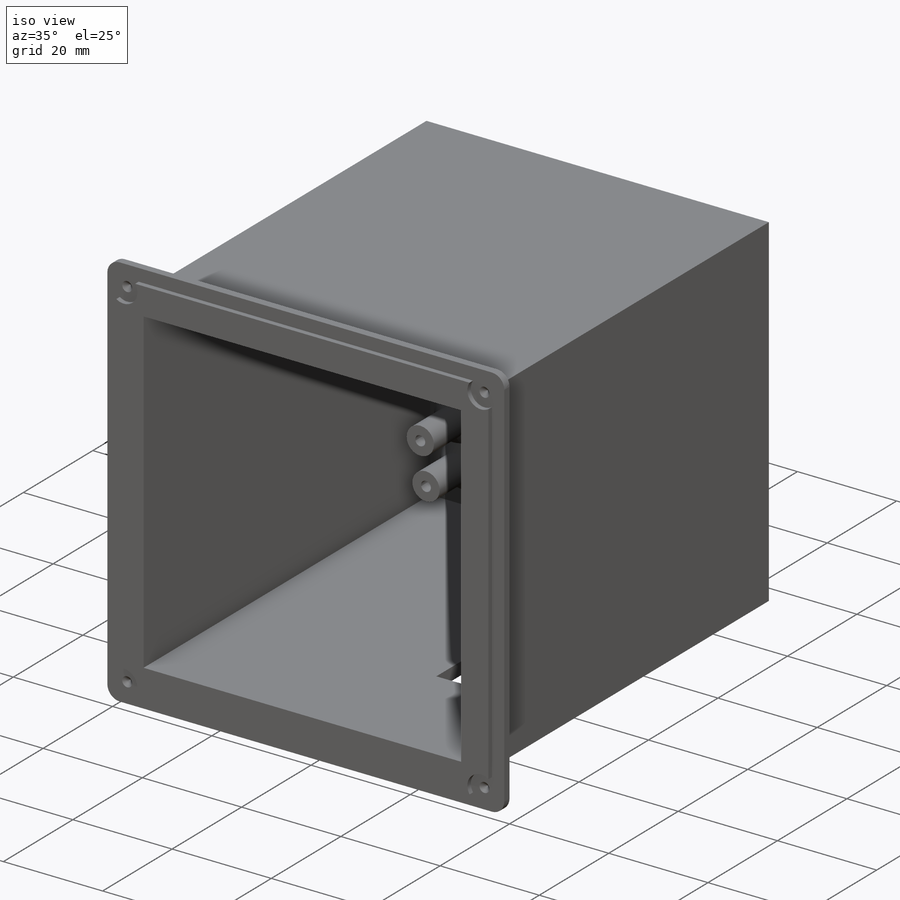
[diagram: iso view]
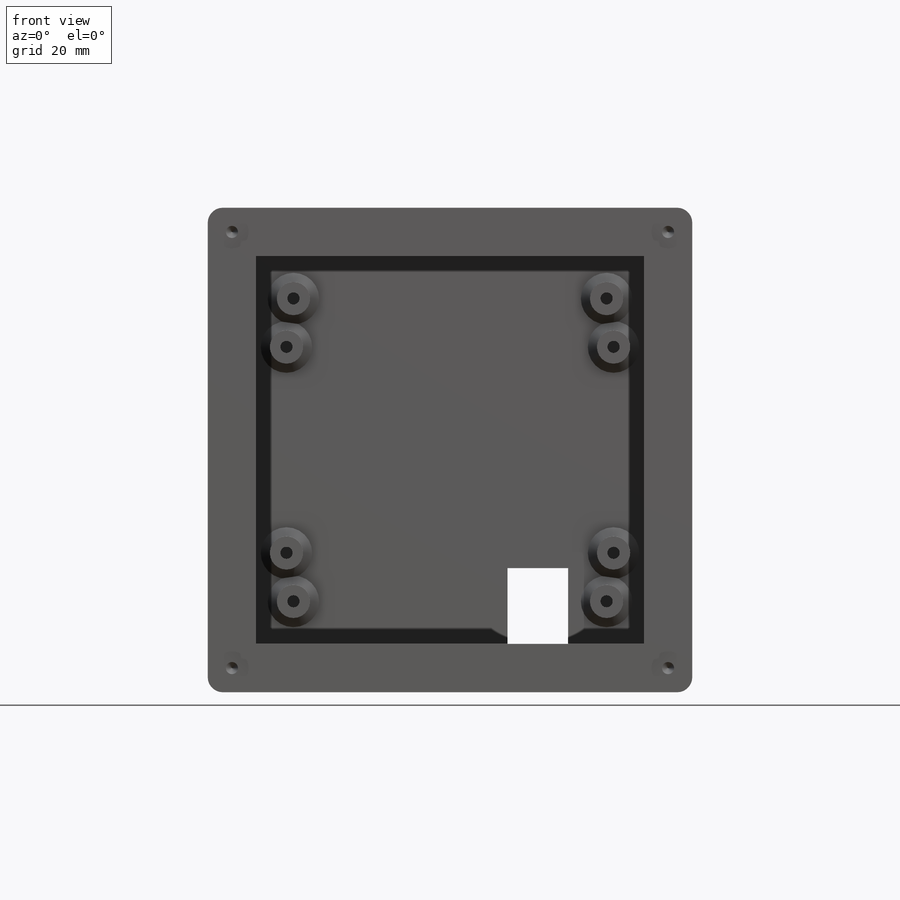
[diagram: front view]
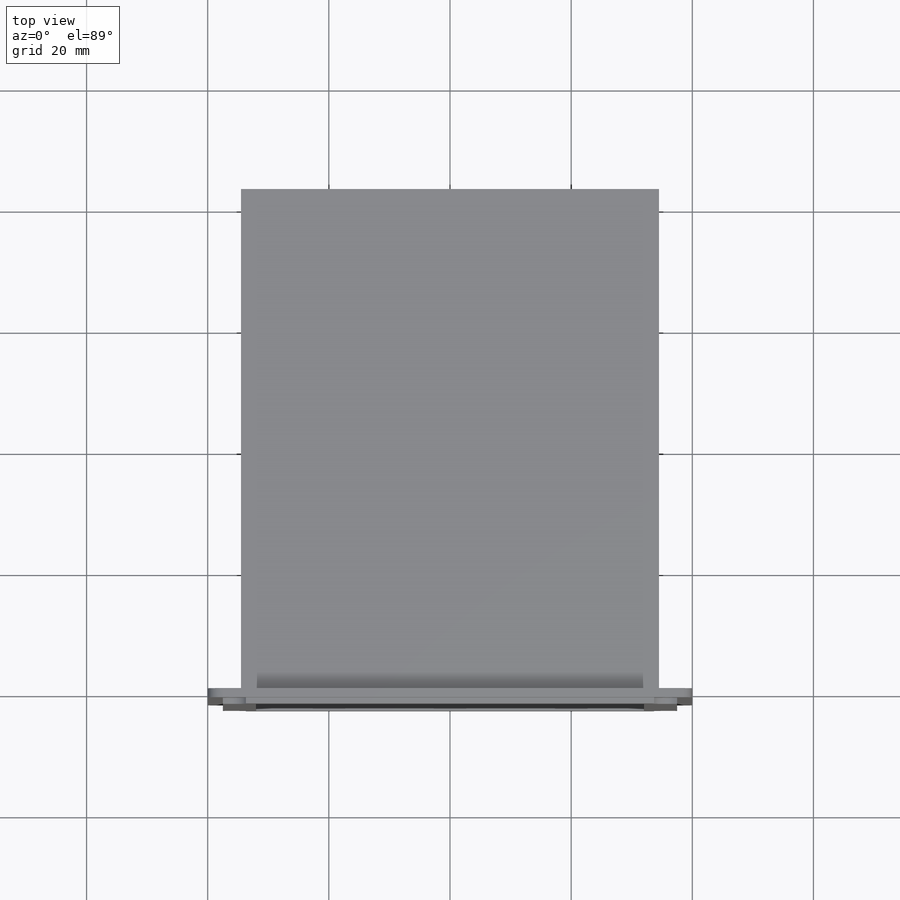
[diagram: top view]
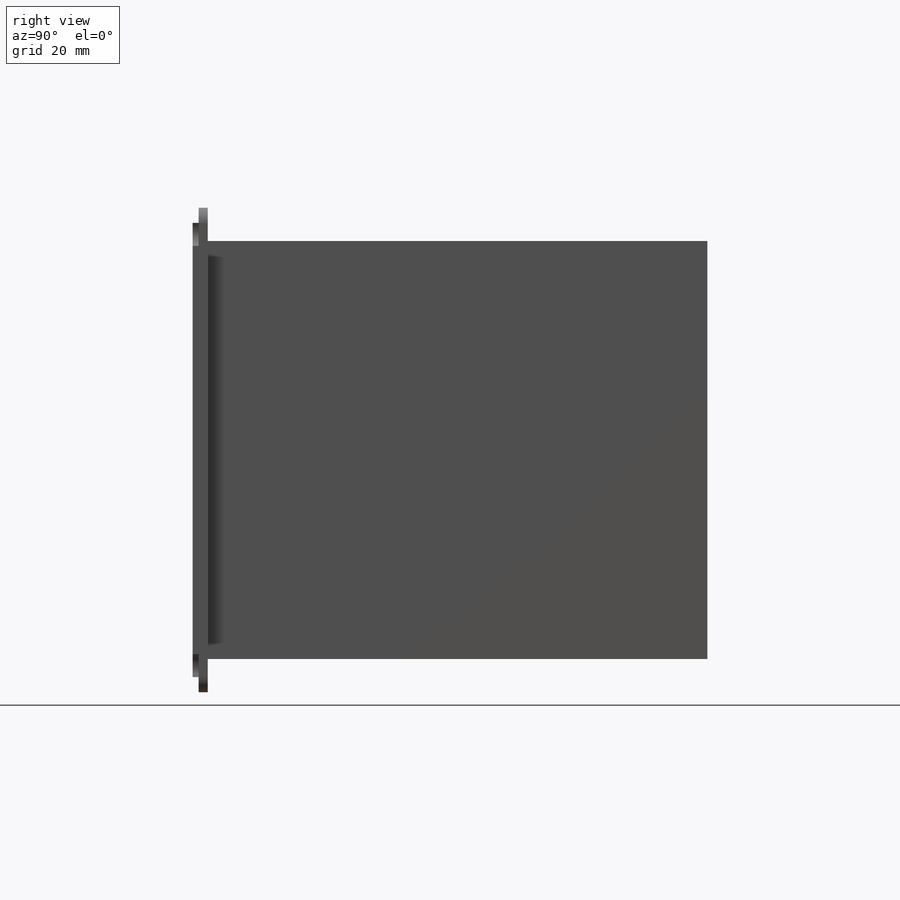
[diagram: right view]
SOLIDWORKS PART (.sldprt)
format: sldprt  version: not decoded by parser v0  size: 370,176 bytes
history: native  units: mm
features: sketch x9, extrude x5, cut_extrude x4, plane x3, material x1, chamfer x1 (+9 scaffold rows collapsed)
feature tree (32):
  scaffold x9  (default folders/planes/origin — collapsed)
  material  "Malzeme <belirli değil>"
  plane  "Ön Düzlem"
  plane  "Üst Düzlem"
  plane  "Sağ Düzlem"
  sketch  "Çizim1"  dims[c1.D2=2.5mm c1.D1=37.5mm c2.D2=75.0mm c2.D3=37.5mm c2.D4=75.0mm c2.D5=64.0mm c2.D6=32.0mm c2.D7=64.0mm c2.D8=32.0mm c2.D9=75.0mm c3.D9=90.0deg c4.D9=75.0mm c5.D9=90.0deg c6.D9=75.0mm c7.D9=90.0deg c8.D9=40.0mm c8.D10=80.0mm c8.D11=40.0mm c8.D12=80.0mm]
  extrude  "Yükseklik-Ekstrüzyon1"  Depth=1.5mm
  sketch  "Çizim2"  dims[D1=37.5mm D2=75.0mm D3=37.5mm D4=75.0mm]
  extrude  "Yükseklik-Ekstrüzyon2"  Depth=1mm
  sketch  "Çizim3"  dims[D1=32.0mm D2=64.0mm D3=32.0mm D4=64.0mm]
  cut_extrude  "Kes-Ekstrüzyon1"  Depth=41mm
  sketch  "Çizim4"  dims[D1=2.5mm D2=2.5mm D3=2.5mm D4=2.5mm]
  extrude  "Yükseklik-Ekstrüzyon4"  Depth=80mm
  sketch  "Çizim5"
  extrude  "Yükseklik-Ekstrüzyon5"  Depth=2.5mm
  sketch  "Çizim6"  dims[D1=15.0mm D2=15.0mm D3=10.0mm]
  cut_extrude  "Kes-Ekstrüzyon2"  Depth=60mm
  sketch  "Çizim7"  dims[c1.D5=5.5mm c1.D10=5.5mm c1.D11=2.0mm c1.D12=2.0mm c1.D1=25.75mm c1.D2=51.5mm c1.D3=24.75mm c1.D4=49.5mm c2.D5=49.5mm c3.D5=90.0deg c4.D5=51.5mm c4.D6=27.0mm c4.D7=54.0mm c4.D8=17.0mm c4.D9=34.0mm c4.D12=54.0mm c4.D4=49.5mm c4.D2=25.0mm c4.D3=25.85mm c5.D4=17.0mm c5.D6=27.0mm c5.D7=54.0mm]
  extrude  "Yükseklik-Ekstrüzyon7"  Depth=10mm
  chamfer  "Pah2"  Distance=1.5mm Angle=45deg
  sketch  "Çizim8"  dims[c1.D1=5.5mm c1.D2=2.0mm c2.D1=8.0mm]
  cut_extrude  "Kes-Ekstrüzyon4"  Depth=1mm
  sketch  "Çizim10"  dims[D1=2.0mm]
  cut_extrude  "Kes-Ekstrüzyon6"  Depth=1.5mm
decode coverage: 18 of 19 modeling features carry decoded parameters
note: suppression state not decoded; provenance and decode notes live in map.json
